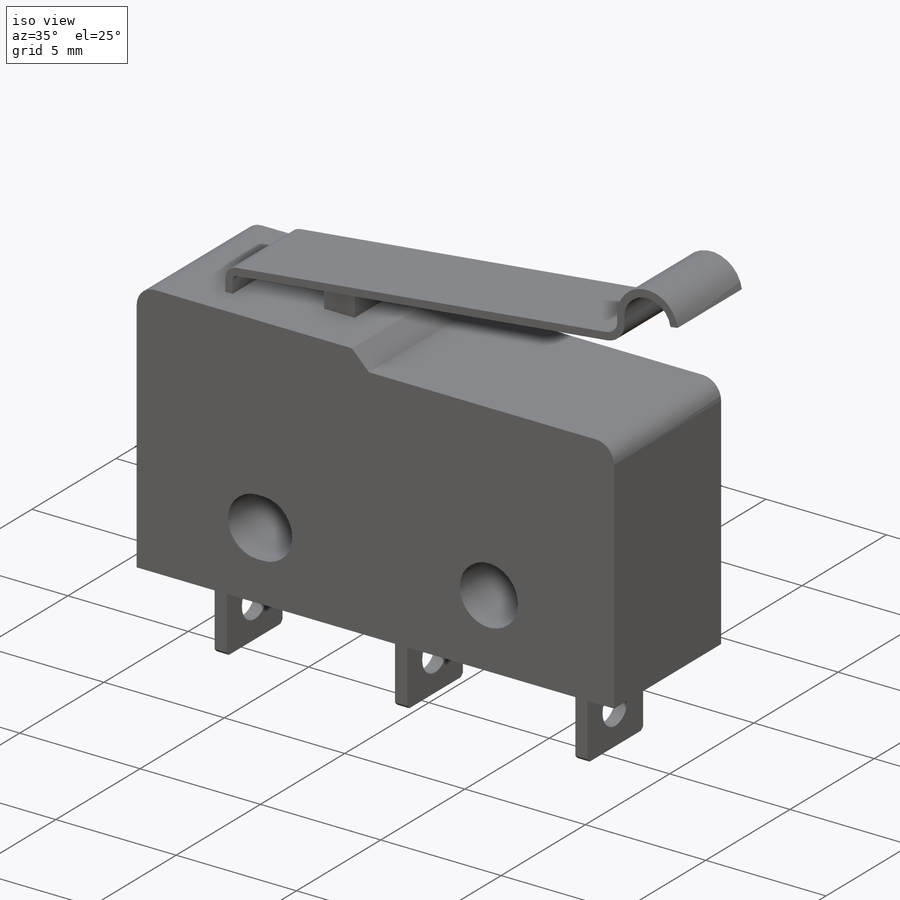
[diagram: iso view]
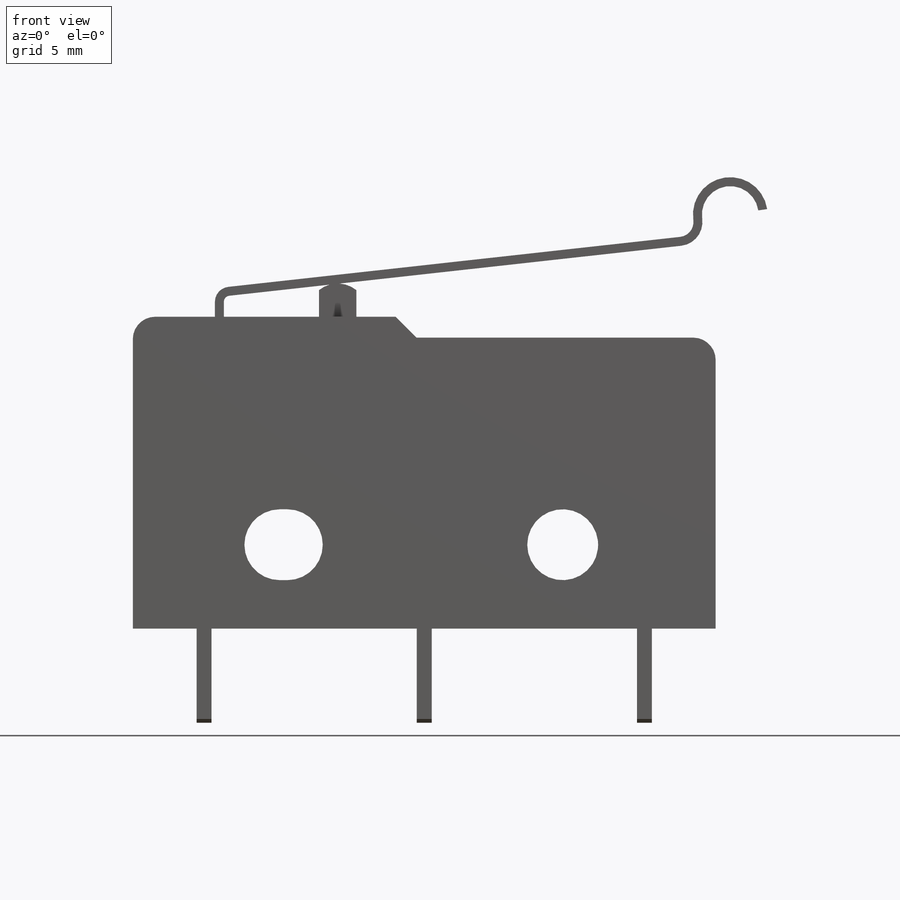
[diagram: front view]
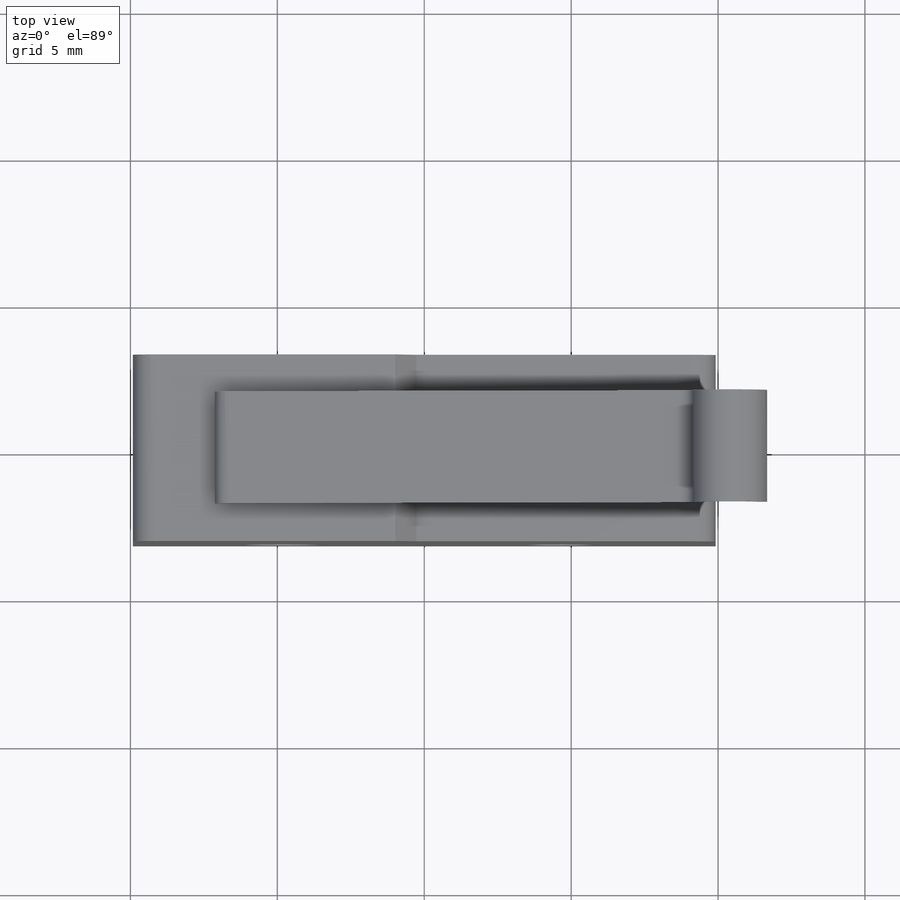
[diagram: top view]
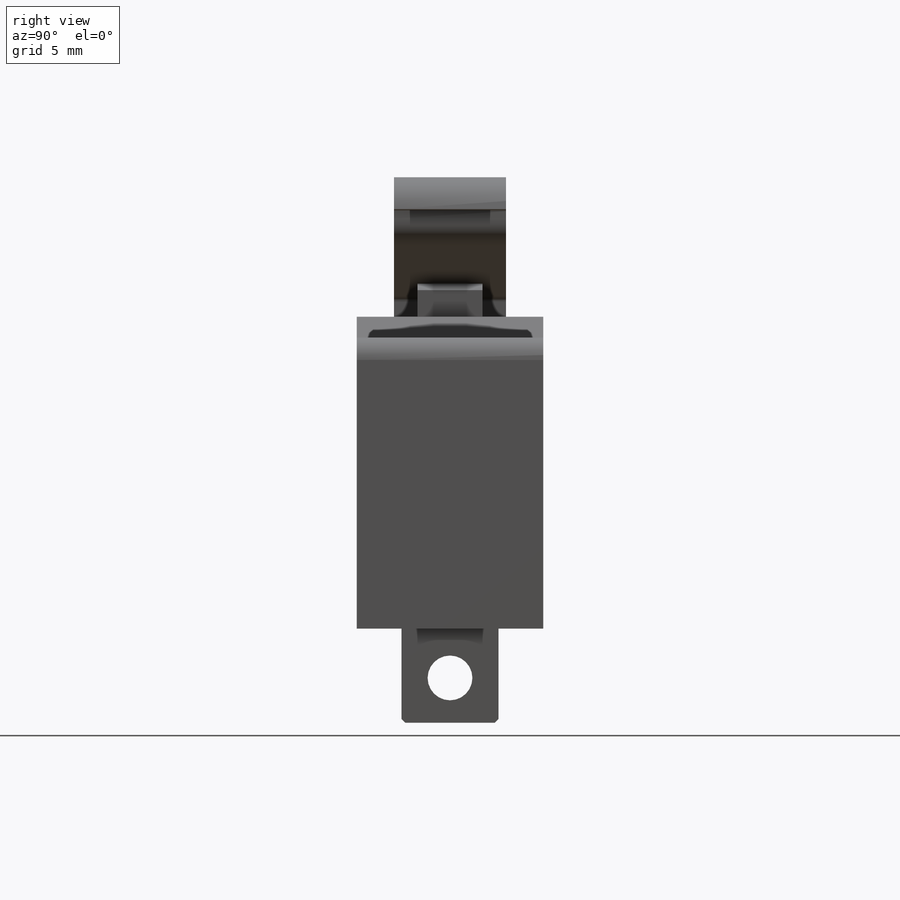
[diagram: right view]
SOLIDWORKS PART (.sldprt)
format: sldprt  version: not decoded by parser v0  size: 301,056 bytes
history: native  units: mm
features: sketch x4, extrude x3, material x1, plane x1, pattern_linear x1 (+13 scaffold rows collapsed)
feature tree (23):
  scaffold x13  (default folders/planes/origin — collapsed)
  material  "Material <not specified>"
  sketch  "Sketch2"  dims[c1.D4=~1.43033mm c1.D5=2.413mm c1.D6=1.1049mm c1.D7=2.2098mm c1.D8=2.2098mm c1.D9=2.2098mm c1.D13=1.1049mm c1.D10=0.762mm c1.D1=19.8374mm c1.D2=9.652mm c1.D3=9.4996mm c2.D2=2.8575mm c2.D4=5.207mm c2.D6=2.667mm c2.D7=6.6548mm c2.D8=7.747mm c2.D9=7.493mm c2.D10=0.508mm c2.D11=~2.886593mm c3.D11=10.0deg c3.D12=~0.786744mm c4.D12=135.0deg c4.D13=6.9088mm c4.D8=10.6172mm c4.D7=9.906mm c4.D9=9.652mm]
  extrude  "Extrude1"  Depth=6.35mm
  sketch  "Sketch3"  dims[c1.D1=1.1049mm c1.D3=1.016mm c2.D1=8.89mm c2.D2=1.27mm]
  extrude  "Extrude2"  Depth=2.2098mm
  plane  "Plane1"  Offset=7.493mm
  sketch  "Sketch10"  dims[D2=1.524mm D1=3.2004mm D3=3.302mm D4=1.524mm D5=0.127mm D6=45.0deg D7=0.127mm D8=45.0deg]
  extrude  "Extrude6"  Depth=0.508mm
  pattern_linear  "LPattern1"  Count1=3 Count2=1 Spacing1=7.493mm Spacing2=50mm
  sketch  "Sketch11"  dims[c1.D4=1.27mm c1.D5=0.508mm c1.D1=2.794mm c1.D2=15.367mm c1.D3=21.59mm c1.D6=1.016mm c1.D7=13.335mm c2.D1=3.81mm c2.D5=0.3048mm c2.D6=2.54mm c2.D7=5.0mm]
decode coverage: 8 of 8 modeling features carry decoded parameters
note: ~ marks probable driven/reference dimensions
note: suppression state not decoded; provenance and decode notes live in map.json
